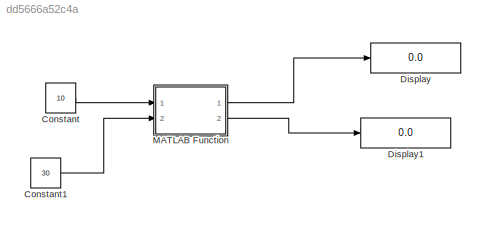
MODEL slx_dd5666a52c4a
KIND model
CONFIG AbsTol = auto
CONFIG EnableMultiTasking = off
CONFIG FixedStep = auto
CONFIG MaxStep = auto
CONFIG MinStep = auto
CONFIG RelTol = 1e-3
CONFIG SampleTimeConstraint = Unconstrained
CONFIG Solver = VariableStepAuto
CONFIG SolverName = VariableStepAuto
CONFIG StartTime = 0.0
CONFIG StopTime = 10.0
BLOCK [Constant] Constant
  Value = 10
BLOCK [Constant] Constant1
  Value = 30
BLOCK [Display] Display
  Decimation = 1
  Ports = [1]
BLOCK [Display] Display1
  Decimation = 1
  Ports = [1]
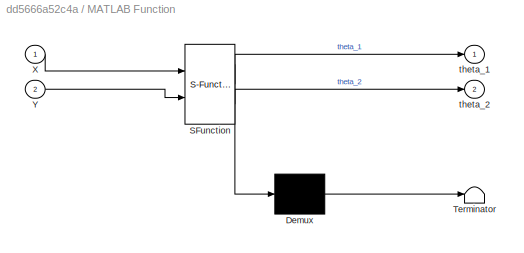
BLOCK [SubSystem] MATLAB Function
  ErrorFcn = Stateflow.Translate.translate
  PermitHierarchicalResolution = ExplicitOnly
  Ports = [2, 2]
  RequestExecContextInheritance = off
  SFBlockType = MATLAB Function
  TreatAsAtomicUnit = on
BLOCK [Demux] MATLAB Function/ Demux 
  Outputs = 1
  Ports = [1, 1]
BLOCK [S-Function] MATLAB Function/ SFunction 
  EnableBusSupport = on
  FunctionName = sf_sfun
  PortCounts = [2 3]
  Ports = [2, 3]
  SFcnIsStateOwnerBlock = off
  SFunctionDeploymentMode = off
  Tag = Stateflow S-Function inverse 2
BLOCK [Terminator] MATLAB Function/ Terminator 
BLOCK [Inport] MATLAB Function/X
  IconDisplay = Port number
BLOCK [Inport] MATLAB Function/Y
  IconDisplay = Port number
  Port = 2
BLOCK [Outport] MATLAB Function/theta_1
  IconDisplay = Port number
BLOCK [Outport] MATLAB Function/theta_2
  IconDisplay = Port number
  Port = 2
LINE Constant1:1 -> MATLAB Function:2
LINE Constant:1 -> MATLAB Function:1
LINE MATLAB Function:1 -> Display:1
LINE MATLAB Function:2 -> Display1:1
CHART MATLAB Function states=1 transitions=1
  STATE_LABEL 'eML_blk_kernel()'
  STATE_LABEL 'SCRIPT:\n\nfunction [theta_1,theta_2] = fcn(X, Y)\n\n    lenth = 0.25;\n    lenth_6 = 0.2;\n    theta_1=0;\n    theta_2=0;\n    val=50;\n    val_2=50;\n    \n    \n    X=X/100;\n    Y=Y/100;\n    K1 = sqrt(((X+(lenth_6/2))^2)+(Y^2));\n    K2 = sqrt(((X-(lenth_6/2))^2)+(Y^2));\n    \n    if K1 ~= 0\n        if K2 ~=0 \n            val= ((K1^2)/(2*lenth*K1));\n            val_2= ((K2^2)/(2*lenth*K2));\n        end\n    e...<+524ch>'
